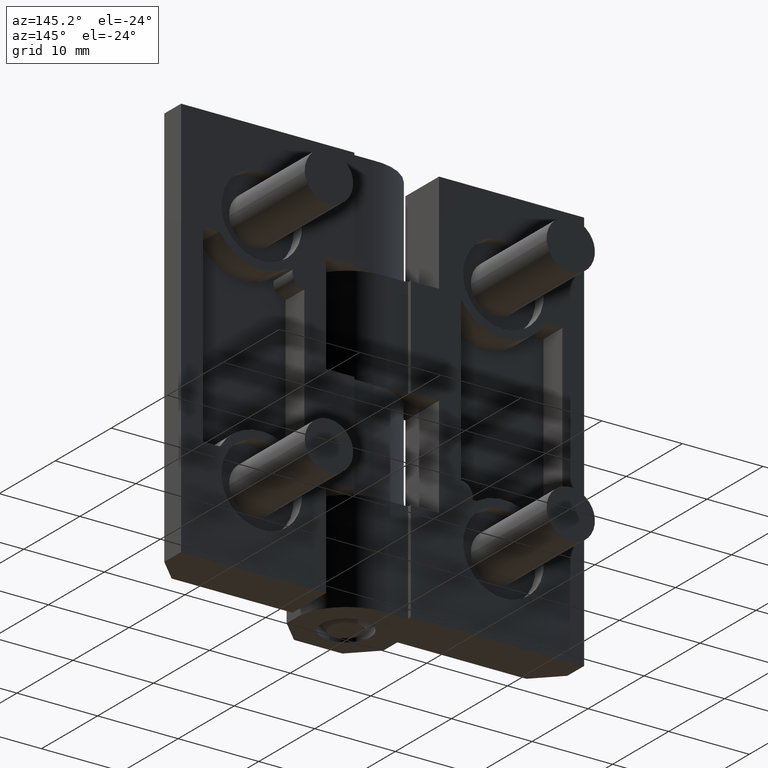
[diagram: clean part render]
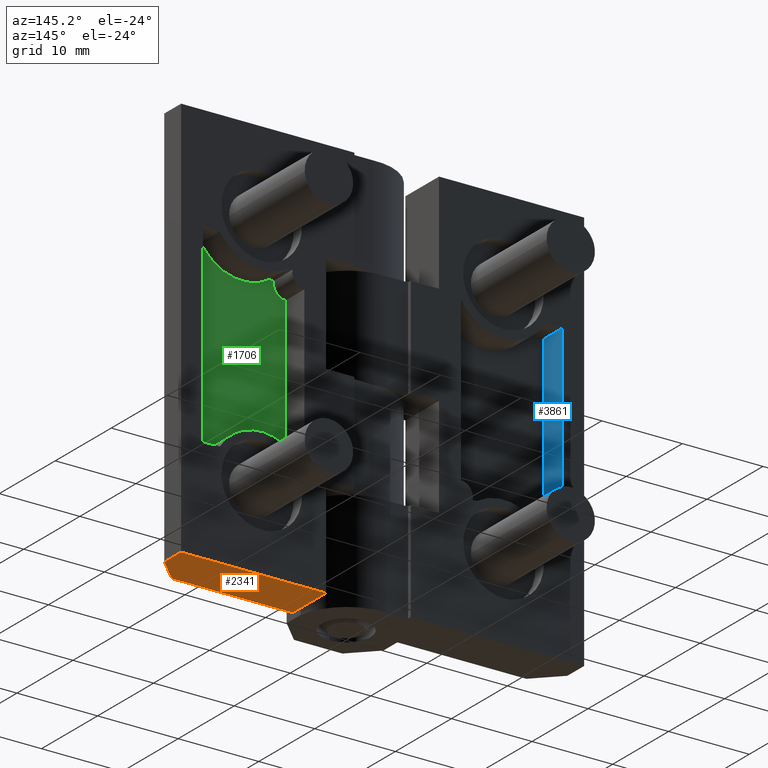
[diagram: same view with three faces highlighted in distinct colors, each labeled with its STEP entity id]
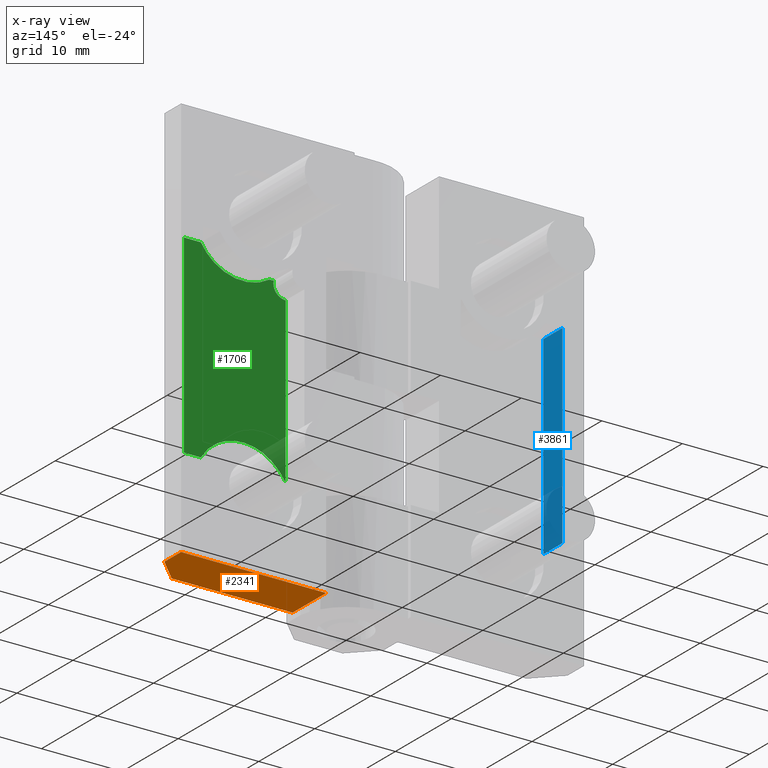
[diagram: x-ray of the same camera — body ghosted, the three highlighted faces saturated]
A machine part, auxiliary view with three faces highlighted in distinct colors.
The next image is the same camera in x-ray (body ghosted, the three faces saturated) — at least one of them is partly hidden behind the body in this view.
Their STEP definitions:

[orange] entity #2341 — the highlighted face is a freeform B-spline surface patch.
#2284=CARTESIAN_POINT('',(7.000000000026111,0.500000000000056,0.0));
#2285=VERTEX_POINT('',#2284);
#2292=CARTESIAN_POINT('',(7.000000000028010,6.500000000000000,0.0));
#2293=VERTEX_POINT('',#2292);
#2299=CARTESIAN_POINT('',(7.000000000026111,0.500000000000056,0.0));
#2300=CARTESIAN_POINT('',(7.000000000028010,6.500000000000000,0.0));
#2301=QUASI_UNIFORM_CURVE('',1,(#2299,#2300),.UNSPECIFIED.,.F.,.U.);
#2302=EDGE_CURVE('',#2285,#2293,#2301,.T.);
#2307=CARTESIAN_POINT('',(6.100900034913484,0.200300011629180,0.0));
#2308=CARTESIAN_POINT('',(25.899100447938750,0.200300011629180,0.0));
#2309=CARTESIAN_POINT('',(6.100900034913484,6.799700149303376,0.0));
#2310=CARTESIAN_POINT('',(25.899100447938750,6.799700149303376,0.0));
#2311=B_SPLINE_SURFACE_WITH_KNOTS('',1,1,((#2307,#2309),(#2308,#2310)),.UNSPECIFIED.,.F.,.F.,.U.,(2,2),(2,2),(0.0,19.798200413025270),(0.0,6.599400137674196),.UNSPECIFIED.);
#2312=ORIENTED_EDGE('',*,*,#2302,.T.);
#2313=CARTESIAN_POINT('',(25.000000000028500,6.499999999897190,0.0));
#2314=VERTEX_POINT('',#2313);
#2315=CARTESIAN_POINT('',(7.000000000028010,6.500000000000000,0.0));
#2316=CARTESIAN_POINT('',(25.000000000028500,6.499999999897190,0.0));
#2317=QUASI_UNIFORM_CURVE('',1,(#2315,#2316),.UNSPECIFIED.,.F.,.U.);
#2318=EDGE_CURVE('',#2293,#2314,#2317,.T.);
#2319=ORIENTED_EDGE('',*,*,#2318,.T.);
#2320=CARTESIAN_POINT('',(25.000000000026500,3.500000000000000,0.0));
#2321=VERTEX_POINT('',#2320);
#2322=CARTESIAN_POINT('',(25.000000000028500,6.499999999897190,0.0));
#2323=CARTESIAN_POINT('',(25.000000000026500,3.500000000000000,0.0));
#2324=QUASI_UNIFORM_CURVE('',1,(#2322,#2323),.UNSPECIFIED.,.F.,.U.);
#2325=EDGE_CURVE('',#2314,#2321,#2324,.T.);
#2326=ORIENTED_EDGE('',*,*,#2325,.T.);
#2327=CARTESIAN_POINT('',(22.000000000024400,0.500000000000014,0.0));
#2328=VERTEX_POINT('',#2327);
#2329=CARTESIAN_POINT('',(25.000000000026500,3.500000000000000,0.0));
#2330=CARTESIAN_POINT('',(22.000000000024400,0.500000000000014,0.0));
#2331=QUASI_UNIFORM_CURVE('',1,(#2329,#2330),.UNSPECIFIED.,.F.,.U.);
#2332=EDGE_CURVE('',#2321,#2328,#2331,.T.);
#2333=ORIENTED_EDGE('',*,*,#2332,.T.);
#2334=CARTESIAN_POINT('',(22.000000000024400,0.500000000000014,0.0));
#2335=CARTESIAN_POINT('',(7.000000000026111,0.500000000000056,0.0));
#2336=QUASI_UNIFORM_CURVE('',1,(#2334,#2335),.UNSPECIFIED.,.F.,.U.);
#2337=EDGE_CURVE('',#2328,#2285,#2336,.T.);
#2338=ORIENTED_EDGE('',*,*,#2337,.T.);
#2339=EDGE_LOOP('',(#2312,#2319,#2326,#2333,#2338));
#2340=FACE_OUTER_BOUND('',#2339,.T.);
#2341=ADVANCED_FACE('',(#2340),#2311,.F.);

[blue] entity #3861 — the highlighted face is a freeform B-spline surface patch.
#3674=CARTESIAN_POINT('',(-22.300000000000001,3.116105903234190,13.0));
#3675=VERTEX_POINT('',#3674);
#3681=CARTESIAN_POINT('',(-22.300000000000001,3.116105903234190,37.0));
#3682=VERTEX_POINT('',#3681);
#3683=CARTESIAN_POINT('',(-22.300000000000001,3.116105903234190,37.0));
#3684=CARTESIAN_POINT('',(-22.300000000000001,3.116105903234190,13.0));
#3685=QUASI_UNIFORM_CURVE('',1,(#3683,#3684),.UNSPECIFIED.,.F.,.U.);
#3686=EDGE_CURVE('',#3682,#3675,#3685,.T.);
#3823=CARTESIAN_POINT('',(-22.300000000000001,6.500000000000000,37.0));
#3824=VERTEX_POINT('',#3823);
#3832=CARTESIAN_POINT('',(-22.300000000000001,3.116105903234190,37.0));
#3833=CARTESIAN_POINT('',(-22.300000000000001,6.500000000000000,37.0));
#3834=QUASI_UNIFORM_CURVE('',1,(#3832,#3833),.UNSPECIFIED.,.F.,.U.);
#3835=EDGE_CURVE('',#3682,#3824,#3834,.T.);
#3840=CARTESIAN_POINT('',(-22.300000000000001,2.947080272597074,38.198799953483352));
#3841=CARTESIAN_POINT('',(-22.300000000000001,2.947080272597074,11.801199402786491));
#3842=CARTESIAN_POINT('',(-22.300000000000001,6.669025600382746,38.198799953483352));
#3843=CARTESIAN_POINT('',(-22.300000000000001,6.669025600382746,11.801199402786491));
#3844=B_SPLINE_SURFACE_WITH_KNOTS('',1,1,((#3840,#3842),(#3841,#3843)),.UNSPECIFIED.,.F.,.F.,.U.,(2,2),(2,2),(0.0,26.397600550696861),(0.0,3.721945327785671),.UNSPECIFIED.);
#3845=CARTESIAN_POINT('',(-22.300000000000001,6.500000000000000,13.0));
#3846=VERTEX_POINT('',#3845);
#3847=CARTESIAN_POINT('',(-22.300000000000001,6.500000000000000,37.0));
#3848=CARTESIAN_POINT('',(-22.300000000000001,6.500000000000000,13.0));
#3849=QUASI_UNIFORM_CURVE('',1,(#3847,#3848),.UNSPECIFIED.,.F.,.U.);
#3850=EDGE_CURVE('',#3824,#3846,#3849,.T.);
#3851=ORIENTED_EDGE('',*,*,#3850,.F.);
#3852=ORIENTED_EDGE('',*,*,#3835,.F.);
#3853=ORIENTED_EDGE('',*,*,#3686,.T.);
#3854=CARTESIAN_POINT('',(-22.300000000000001,3.116105903234190,13.0));
#3855=CARTESIAN_POINT('',(-22.300000000000001,6.500000000000000,13.0));
#3856=QUASI_UNIFORM_CURVE('',1,(#3854,#3855),.UNSPECIFIED.,.F.,.U.);
#3857=EDGE_CURVE('',#3675,#3846,#3856,.T.);
#3858=ORIENTED_EDGE('',*,*,#3857,.T.);
#3859=EDGE_LOOP('',(#3851,#3852,#3853,#3858));
#3860=FACE_OUTER_BOUND('',#3859,.T.);
#3861=ADVANCED_FACE('',(#3860),#3844,.T.);

[green] entity #1706 — the highlighted face is a freeform B-spline surface patch.
#1606=CARTESIAN_POINT('',(9.070629832877726,3.116105903234150,38.198799953483359));
#1607=CARTESIAN_POINT('',(22.929369378552831,3.116105903234150,38.198799953483359));
#1608=CARTESIAN_POINT('',(9.070629832877726,3.116105903234150,11.801199402786491));
#1609=CARTESIAN_POINT('',(22.929369378552831,3.116105903234150,11.801199402786491));
#1610=B_SPLINE_SURFACE_WITH_KNOTS('',1,1,((#1606,#1608),(#1607,#1609)),.UNSPECIFIED.,.F.,.F.,.U.,(2,2),(2,2),(0.0,13.858739545675100),(0.0,26.397600550696868),.UNSPECIFIED.);
#1611=CARTESIAN_POINT('',(9.700000000000001,3.116105903234190,13.0));
#1612=VERTEX_POINT('',#1611);
#1613=CARTESIAN_POINT('',(9.700000000000001,3.116105903234190,33.193400335466698));
#1614=VERTEX_POINT('',#1613);
#1615=CARTESIAN_POINT('',(9.700000000000001,3.116105903234190,13.0));
#1616=CARTESIAN_POINT('',(9.700000000000001,3.116105903234190,33.193400335466698));
#1617=QUASI_UNIFORM_CURVE('',1,(#1615,#1616),.UNSPECIFIED.,.F.,.U.);
#1618=EDGE_CURVE('',#1612,#1614,#1617,.T.);
#1619=ORIENTED_EDGE('',*,*,#1618,.T.);
#1620=CARTESIAN_POINT('',(11.168331245226300,3.116105903234190,35.0));
#1621=VERTEX_POINT('',#1620);
#1622=CARTESIAN_POINT('',(9.700000000000001,3.116105903234190,33.193400335466698));
#1623=CARTESIAN_POINT('',(10.413811930884362,3.116105903234190,33.193400335466698));
#1624=CARTESIAN_POINT('',(10.864023087571720,3.116105903234190,33.747329380622404));
#1625=CARTESIAN_POINT('',(11.314234244259072,3.116105903234190,34.301258425778094));
#1626=CARTESIAN_POINT('',(11.168331245226300,3.116105903234190,35.0));
#1634=(BOUNDED_CURVE()B_SPLINE_CURVE(2,(#1622,#1623,#1624,#1625,#1626),.UNSPECIFIED.,.F.,.U.)B_SPLINE_CURVE_WITH_KNOTS((3,2,3),(0.0,0.500000000000000,1.0),.UNSPECIFIED.)CURVE()GEOMETRIC_REPRESENTATION_ITEM()RATIONAL_B_SPLINE_CURVE((1.0,0.902971198293778,1.0,0.902971198293778,1.0))REPRESENTATION_ITEM(''));
#1635=EDGE_CURVE('',#1614,#1621,#1634,.T.);
#1636=ORIENTED_EDGE('',*,*,#1635,.T.);
#1637=CARTESIAN_POINT('',(11.683375209697500,3.116105903234190,35.0));
#1638=VERTEX_POINT('',#1637);
#1639=CARTESIAN_POINT('',(11.168331245226300,3.116105903234190,35.0));
#1640=CARTESIAN_POINT('',(11.683375209697500,3.116105903234190,35.0));
#1641=QUASI_UNIFORM_CURVE('',1,(#1639,#1640),.UNSPECIFIED.,.F.,.U.);
#1642=EDGE_CURVE('',#1621,#1638,#1641,.T.);
#1643=ORIENTED_EDGE('',*,*,#1642,.T.);
#1644=CARTESIAN_POINT('',(20.196152422686449,3.116105903234190,37.0));
#1645=VERTEX_POINT('',#1644);
#1646=CARTESIAN_POINT('',(11.683375209697500,3.116105903234190,35.0));
#1647=CARTESIAN_POINT('',(13.845962745153958,3.116105903234189,33.565501713751274));
#1648=CARTESIAN_POINT('',(16.372281323280209,3.116105903234190,34.159037410720188));
#1649=CARTESIAN_POINT('',(18.898599901406449,3.116105903234189,34.752573107689116));
#1650=CARTESIAN_POINT('',(20.196152422686389,3.116105903234190,37.000000000000043));
#1658=(BOUNDED_CURVE()B_SPLINE_CURVE(2,(#1646,#1647,#1648,#1649,#1650),.UNSPECIFIED.,.F.,.U.)B_SPLINE_CURVE_WITH_KNOTS((3,2,3),(0.0,0.500000000000000,1.0),.UNSPECIFIED.)CURVE()GEOMETRIC_REPRESENTATION_ITEM()RATIONAL_B_SPLINE_CURVE((1.0,0.917828587018774,1.0,0.917828587018774,1.0))REPRESENTATION_ITEM(''));
#1659=EDGE_CURVE('',#1638,#1645,#1658,.T.);
#1660=ORIENTED_EDGE('',*,*,#1659,.T.);
#1661=CARTESIAN_POINT('',(22.300000000000001,3.116105903234190,37.0));
#1662=VERTEX_POINT('',#1661);
#1663=CARTESIAN_POINT('',(20.196152422686449,3.116105903234190,37.0));
#1664=CARTESIAN_POINT('',(22.300000000000001,3.116105903234190,37.0));
#1665=QUASI_UNIFORM_CURVE('',1,(#1663,#1664),.UNSPECIFIED.,.F.,.U.);
#1666=EDGE_CURVE('',#1645,#1662,#1665,.T.);
#1667=ORIENTED_EDGE('',*,*,#1666,.T.);
#1668=CARTESIAN_POINT('',(22.300000000000001,3.116105903234190,13.0));
#1669=VERTEX_POINT('',#1668);
#1670=CARTESIAN_POINT('',(22.300000000000001,3.116105903234190,37.0));
#1671=CARTESIAN_POINT('',(22.300000000000001,3.116105903234190,13.0));
#1672=QUASI_UNIFORM_CURVE('',1,(#1670,#1671),.UNSPECIFIED.,.F.,.U.);
#1673=EDGE_CURVE('',#1662,#1669,#1672,.T.);
#1674=ORIENTED_EDGE('',*,*,#1673,.T.);
#1675=CARTESIAN_POINT('',(20.196152422727000,3.116105903234190,13.0));
#1676=VERTEX_POINT('',#1675);
#1677=CARTESIAN_POINT('',(22.300000000000001,3.116105903234190,13.0));
#1678=CARTESIAN_POINT('',(20.196152422727000,3.116105903234190,13.0));
#1679=QUASI_UNIFORM_CURVE('',1,(#1677,#1678),.UNSPECIFIED.,.F.,.U.);
#1680=EDGE_CURVE('',#1669,#1676,#1679,.T.);
#1681=ORIENTED_EDGE('',*,*,#1680,.T.);
#1682=CARTESIAN_POINT('',(9.803847577273469,3.116105903234190,13.0));
#1683=VERTEX_POINT('',#1682);
#1684=CARTESIAN_POINT('',(20.196152422727021,3.116105903234190,13.000000000000011));
#1685=CARTESIAN_POINT('',(18.464101615164857,3.116105903234190,16.000000000034905));
#1686=CARTESIAN_POINT('',(15.000000000000250,3.116105903234190,16.000000000034898));
#1687=CARTESIAN_POINT('',(11.535898384835631,3.116105903234190,16.000000000034905));
#1688=CARTESIAN_POINT('',(9.803847577273469,3.116105903234190,13.0));
#1696=(BOUNDED_CURVE()B_SPLINE_CURVE(2,(#1684,#1685,#1686,#1687,#1688),.UNSPECIFIED.,.F.,.U.)B_SPLINE_CURVE_WITH_KNOTS((3,2,3),(0.0,0.500000000000000,1.0),.UNSPECIFIED.)CURVE()GEOMETRIC_REPRESENTATION_ITEM()RATIONAL_B_SPLINE_CURVE((1.0,0.866025403782760,1.0,0.866025403782760,1.0))REPRESENTATION_ITEM(''));
#1697=EDGE_CURVE('',#1676,#1683,#1696,.T.);
#1698=ORIENTED_EDGE('',*,*,#1697,.T.);
#1699=CARTESIAN_POINT('',(9.803847577273469,3.116105903234190,13.0));
#1700=CARTESIAN_POINT('',(9.700000000000001,3.116105903234190,13.0));
#1701=QUASI_UNIFORM_CURVE('',1,(#1699,#1700),.UNSPECIFIED.,.F.,.U.);
#1702=EDGE_CURVE('',#1683,#1612,#1701,.T.);
#1703=ORIENTED_EDGE('',*,*,#1702,.T.);
#1704=EDGE_LOOP('',(#1619,#1636,#1643,#1660,#1667,#1674,#1681,#1698,#1703));
#1705=FACE_OUTER_BOUND('',#1704,.T.);
#1706=ADVANCED_FACE('',(#1705),#1610,.T.);